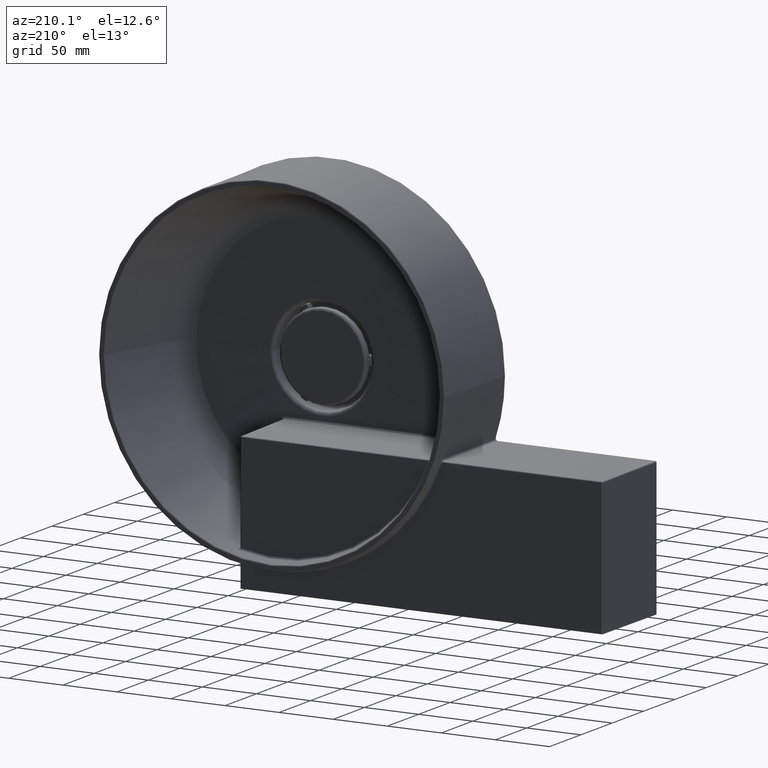
[diagram: clean part render]
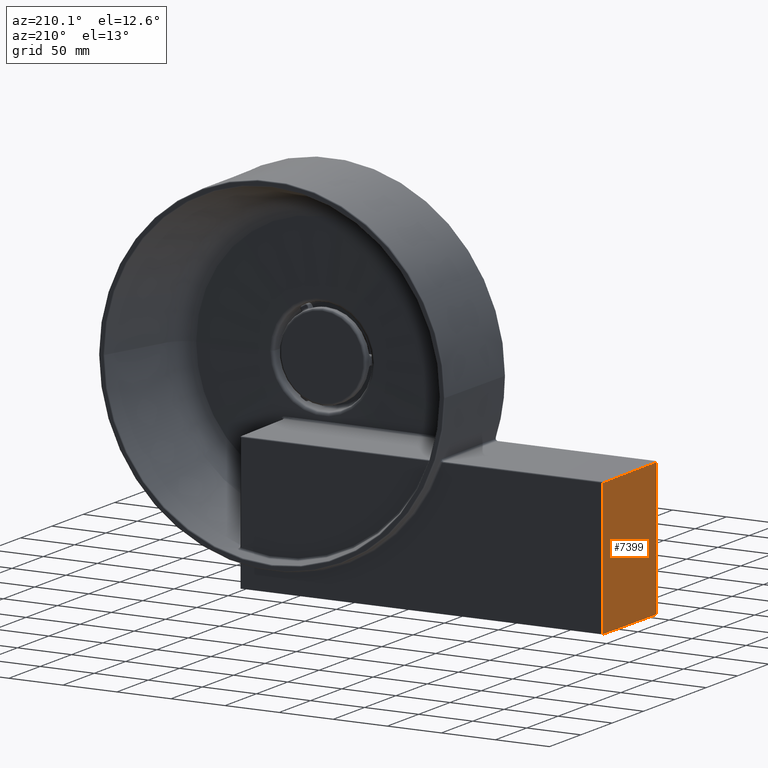
[diagram: same view with one face highlighted and labeled with its STEP entity id]
A machine part, auxiliary view. The second image highlights one B-rep face of the part: STEP entity #7399.
In plain terms, the highlighted planar face has unit normal (-1, 0.0087, 0).
Its self-contained STEP definition (entity closure, byte-faithful):
#5 = EDGE_CURVE ( 'NONE', #4450, #7078, #2303, .T. ) ;
#221 = EDGE_CURVE ( 'NONE', #8894, #8600, #1784, .T. ) ;
#992 = LINE ( 'NONE', #3960, #2024 ) ;
#1359 = ORIENTED_EDGE ( 'NONE', *, *, #221, .F. ) ;
#1498 = CARTESIAN_POINT ( 'NONE',  ( -300.0000000000000568, 106.7993909727527040, -180.0000000000000000 ) ) ;
#1784 = LINE ( 'NONE', #4739, #4857 ) ;
#2024 = VECTOR ( 'NONE', #6935, 1000.000000000000114 ) ;
#2303 = LINE ( 'NONE', #5260, #7813 ) ;
#2463 = ORIENTED_EDGE ( 'NONE', *, *, #9370, .F. ) ;
#2766 = VECTOR ( 'NONE', #8793, 1000.000000000000000 ) ;
#2847 = LINE ( 'NONE', #5819, #2766 ) ;
#3960 = CARTESIAN_POINT ( 'NONE',  ( -299.9905578158418393, 107.8813581097135739, -56.00940410722235185 ) ) ;
#4063 = ORIENTED_EDGE ( 'NONE', *, *, #6262, .T. ) ;
#4251 = ORIENTED_EDGE ( 'NONE', *, *, #5, .T. ) ;
#4450 = VERTEX_POINT ( 'NONE', #7153 ) ;
#4458 = DIRECTION ( 'NONE',  ( -0.9999619230641713097, 0.008726535498374078659, 0.0000000000000000000 ) ) ;
#4739 = CARTESIAN_POINT ( 'NONE',  ( -300.0086507124692616, 105.8081175082510725, -180.0000000000000000 ) ) ;
#4857 = VECTOR ( 'NONE', #7721, 1000.000000000000000 ) ;
#5260 = CARTESIAN_POINT ( 'NONE',  ( -300.7417837622145385, 21.79939097275270043, -180.0000000000000000 ) ) ;
#5819 = CARTESIAN_POINT ( 'NONE',  ( -299.9744889386955720, 109.7226690509976947, -180.0000000000000000 ) ) ;
#5931 = FACE_OUTER_BOUND ( 'NONE', #7236, .T. ) ;
#6262 = EDGE_CURVE ( 'NONE', #8894, #4450, #2847, .T. ) ;
#6898 = CARTESIAN_POINT ( 'NONE',  ( -300.7417837622145385, 21.79939097275270043, -55.25817816084965983 ) ) ;
#6935 = DIRECTION ( 'NONE',  ( -0.008726203243944363058, -0.9999238504775704861, 0.008726203243944236423 ) ) ;
#6966 = AXIS2_PLACEMENT_3D ( 'NONE', #1498, #4458, #7442 ) ;
#7078 = VERTEX_POINT ( 'NONE', #6898 ) ;
#7153 = CARTESIAN_POINT ( 'NONE',  ( -300.7417837622144816, 21.79939097275270043, -180.0000000000000000 ) ) ;
#7236 = EDGE_LOOP ( 'NONE', ( #4063, #4251, #2463, #1359 ) ) ;
#7399 = ADVANCED_FACE ( 'NONE', ( #5931 ), #8168, .T. ) ;
#7415 = CARTESIAN_POINT ( 'NONE',  ( -300.0086507124692616, 105.8081175082510725, -180.0000000000000000 ) ) ;
#7442 = DIRECTION ( 'NONE',  ( 0.008726535498374078659, 0.9999619230641713097, 0.0000000000000000000 ) ) ;
#7721 = DIRECTION ( 'NONE',  ( 0.0000000000000000000, 0.0000000000000000000, 1.000000000000000000 ) ) ;
#7813 = VECTOR ( 'NONE', #8243, 1000.000000000000000 ) ;
#8168 = PLANE ( 'NONE',  #6966 ) ;
#8243 = DIRECTION ( 'NONE',  ( 0.0000000000000000000, 0.0000000000000000000, 1.000000000000000000 ) ) ;
#8600 = VERTEX_POINT ( 'NONE', #8881 ) ;
#8793 = DIRECTION ( 'NONE',  ( -0.008726535498374078659, -0.9999619230641713097, 0.0000000000000000000 ) ) ;
#8881 = CARTESIAN_POINT ( 'NONE',  ( -300.0086507124692616, 105.8081175082510725, -55.99131121059496508 ) ) ;
#8894 = VERTEX_POINT ( 'NONE', #7415 ) ;
#9370 = EDGE_CURVE ( 'NONE', #8600, #7078, #992, .T. ) ;